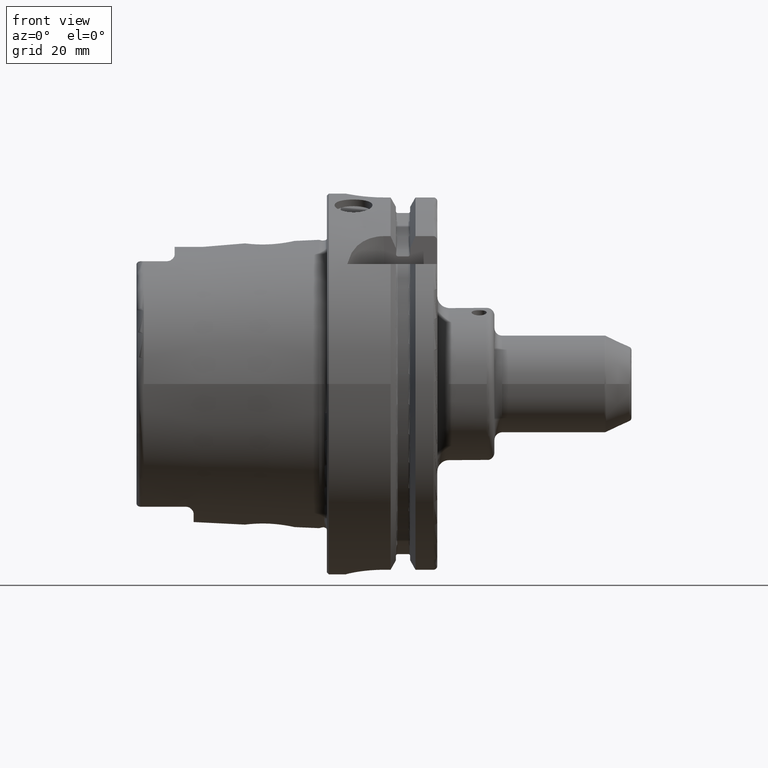
[diagram: clean part render]
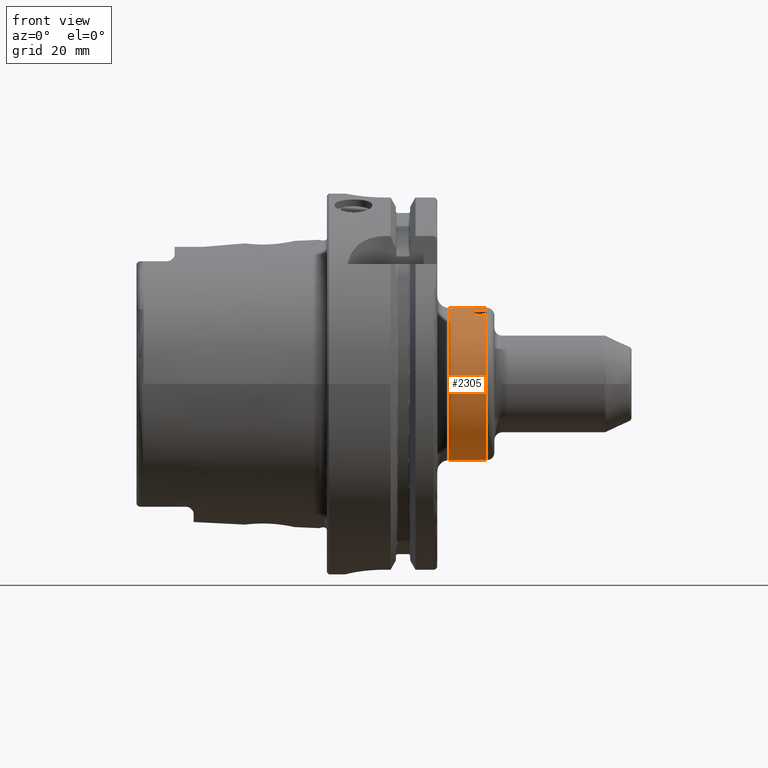
[diagram: same view with one face highlighted and labeled with its STEP entity id]
A machine part, front view. The second image highlights one B-rep face of the part: STEP entity #2305.
In plain terms, the highlighted cylindrical surface (bore or boss wall) has radius 20 mm, axis along (1, 0, 0).
Its self-contained STEP definition (entity closure, byte-faithful):
#70=B_SPLINE_CURVE_WITH_KNOTS('',3,(#3634,#3635,#3636,#3637,#3638,#3639,
#3640,#3641,#3642,#3643,#3644,#3645,#3646,#3647,#3648,#3649,#3650,#3651,
#3652,#3653,#3654,#3655,#3656,#3657,#3658,#3659,#3660,#3661,#3662,#3663,
#3664,#3665,#3666,#3667),.UNSPECIFIED.,.T.,.F.,(4,2,2,2,2,2,2,2,2,2,2,2,
2,2,2,2,4),(0.,0.0753915644060597,0.150783128812119,0.226174436603569,0.301565744395018,
0.376957052186468,0.452348359977918,0.527739924383977,0.603131488790037,
0.678523053196096,0.753914617602155,0.829305925393605,0.904697233185055,
0.980088540976505,1.05547984876795,1.13087141317401,1.20626297758007),
 .UNSPECIFIED.);
#140=CYLINDRICAL_SURFACE('',#2472,20.);
#188=LINE('',#3721,#307);
#307=VECTOR('',#2806,20.);
#477=FACE_OUTER_BOUND('',#614,.T.);
#614=EDGE_LOOP('',(#1578,#1579,#1580,#1581,#1582,#1583,#1584,#1585));
#763=CIRCLE('',#2473,20.);
#764=CIRCLE('',#2474,20.);
#765=CIRCLE('',#2475,20.);
#766=CIRCLE('',#2476,20.);
#767=CIRCLE('',#2477,20.);
#926=VERTEX_POINT('',#3633);
#930=VERTEX_POINT('',#3715);
#931=VERTEX_POINT('',#3717);
#932=VERTEX_POINT('',#3720);
#933=VERTEX_POINT('',#3722);
#1175=EDGE_CURVE('',#926,#926,#70,.T.);
#1183=EDGE_CURVE('',#926,#930,#763,.T.);
#1184=EDGE_CURVE('',#931,#926,#764,.T.);
#1185=EDGE_CURVE('',#930,#931,#765,.T.);
#1186=EDGE_CURVE('',#930,#932,#188,.T.);
#1187=EDGE_CURVE('',#933,#932,#766,.T.);
#1188=EDGE_CURVE('',#932,#933,#767,.T.);
#1578=ORIENTED_EDGE('',*,*,#1183,.F.);
#1579=ORIENTED_EDGE('',*,*,#1175,.T.);
#1580=ORIENTED_EDGE('',*,*,#1184,.F.);
#1581=ORIENTED_EDGE('',*,*,#1185,.F.);
#1582=ORIENTED_EDGE('',*,*,#1186,.T.);
#1583=ORIENTED_EDGE('',*,*,#1187,.F.);
#1584=ORIENTED_EDGE('',*,*,#1188,.F.);
#1585=ORIENTED_EDGE('',*,*,#1186,.F.);
#2305=ADVANCED_FACE('',(#477),#140,.T.);
#2472=AXIS2_PLACEMENT_3D('',#3714,#2798,#2799);
#2473=AXIS2_PLACEMENT_3D('',#3716,#2800,#2801);
#2474=AXIS2_PLACEMENT_3D('',#3718,#2802,#2803);
#2475=AXIS2_PLACEMENT_3D('',#3719,#2804,#2805);
#2476=AXIS2_PLACEMENT_3D('',#3723,#2807,#2808);
#2477=AXIS2_PLACEMENT_3D('',#3724,#2809,#2810);
#2798=DIRECTION('center_axis',(1.,0.,0.));
#2799=DIRECTION('ref_axis',(0.,1.,0.));
#2800=DIRECTION('center_axis',(1.,0.,0.));
#2801=DIRECTION('ref_axis',(0.,-1.,1.83697019872103E-16));
#2802=DIRECTION('center_axis',(1.,0.,0.));
#2803=DIRECTION('ref_axis',(0.,-1.,1.83697019872103E-16));
#2804=DIRECTION('center_axis',(1.,0.,0.));
#2805=DIRECTION('ref_axis',(0.,-1.,1.83697019872103E-16));
#2806=DIRECTION('',(-1.,0.,0.));
#2807=DIRECTION('center_axis',(-1.,0.,0.));
#2808=DIRECTION('ref_axis',(0.,-1.,-1.22464679914735E-16));
#2809=DIRECTION('center_axis',(-1.,0.,0.));
#2810=DIRECTION('ref_axis',(0.,-1.,-1.22464679914735E-16));
#3633=CARTESIAN_POINT('',(42.,-6.84040286651337,18.7938524157182));
#3634=CARTESIAN_POINT('Ctrl Pts',(40.,-4.9267296753571,19.3836873351268));
#3635=CARTESIAN_POINT('Ctrl Pts',(40.2513052146869,-4.9267296753571,19.3836873351268));
#3636=CARTESIAN_POINT('Ctrl Pts',(40.5192457164765,-4.97575253320722,19.3714324900191));
#3637=CARTESIAN_POINT('Ctrl Pts',(41.0119543009131,-5.17407812530953,19.3194054125572));
#3638=CARTESIAN_POINT('Ctrl Pts',(41.2367367618501,-5.32327778655426,19.2793768027751));
#3639=CARTESIAN_POINT('Ctrl Pts',(41.5916897588081,-5.66543039254757,19.1816202273922));
#3640=CARTESIAN_POINT('Ctrl Pts',(41.7455826417283,-5.88123512915884,19.1173181454941));
#3641=CARTESIAN_POINT('Ctrl Pts',(41.9497423975115,-6.35068612857698,18.9665380450829));
#3642=CARTESIAN_POINT('Ctrl Pts',(42.,-6.60425401450329,18.879803568706));
#3643=CARTESIAN_POINT('Ctrl Pts',(42.,-7.07655171852345,18.7079012627304));
#3644=CARTESIAN_POINT('Ctrl Pts',(41.9497423975116,-7.32654783523847,18.6113534310979));
#3645=CARTESIAN_POINT('Ctrl Pts',(41.7455826417283,-7.78308774499099,18.4251004033699));
#3646=CARTESIAN_POINT('Ctrl Pts',(41.5916897588081,-7.98973634579198,18.3356420450835));
#3647=CARTESIAN_POINT('Ctrl Pts',(41.2367367618501,-8.31467716373334,18.1905964706795));
#3648=CARTESIAN_POINT('Ctrl Pts',(41.0119543009131,-8.45470062954602,18.1253564711513));
#3649=CARTESIAN_POINT('Ctrl Pts',(40.5192457164765,-8.64006920806494,18.0377302914455));
#3650=CARTESIAN_POINT('Ctrl Pts',(40.2513052146869,-8.68550015850073,18.0156067618241));
#3651=CARTESIAN_POINT('Ctrl Pts',(39.7486947853131,-8.68550015850073,18.0156067618241));
#3652=CARTESIAN_POINT('Ctrl Pts',(39.4807542835235,-8.64006920806494,18.0377302914455));
#3653=CARTESIAN_POINT('Ctrl Pts',(38.9880456990869,-8.45470062954601,18.1253564711513));
#3654=CARTESIAN_POINT('Ctrl Pts',(38.7632632381499,-8.31467716373334,18.1905964706795));
#3655=CARTESIAN_POINT('Ctrl Pts',(38.4083102411919,-7.98973634579198,18.3356420450835));
#3656=CARTESIAN_POINT('Ctrl Pts',(38.2544173582717,-7.78308774499099,18.4251004033699));
#3657=CARTESIAN_POINT('Ctrl Pts',(38.0502576024884,-7.32654783523848,18.6113534310979));
#3658=CARTESIAN_POINT('Ctrl Pts',(38.,-7.07655171852345,18.7079012627304));
#3659=CARTESIAN_POINT('Ctrl Pts',(38.,-6.60425401450329,18.879803568706));
#3660=CARTESIAN_POINT('Ctrl Pts',(38.0502576024884,-6.35068612857698,18.9665380450829));
#3661=CARTESIAN_POINT('Ctrl Pts',(38.2544173582717,-5.88123512915884,19.1173181454941));
#3662=CARTESIAN_POINT('Ctrl Pts',(38.4083102411919,-5.66543039254757,19.1816202273922));
#3663=CARTESIAN_POINT('Ctrl Pts',(38.7632632381499,-5.32327778655426,19.2793768027751));
#3664=CARTESIAN_POINT('Ctrl Pts',(38.9880456990869,-5.17407812530953,19.3194054125572));
#3665=CARTESIAN_POINT('Ctrl Pts',(39.4807542835235,-4.97575253320722,19.3714324900191));
#3666=CARTESIAN_POINT('Ctrl Pts',(39.7486947853131,-4.9267296753571,19.3836873351268));
#3667=CARTESIAN_POINT('Ctrl Pts',(40.,-4.9267296753571,19.3836873351268));
#3714=CARTESIAN_POINT('Origin',(36.5,0.,0.));
#3715=CARTESIAN_POINT('',(42.,-20.,-2.44929359829471E-15));
#3716=CARTESIAN_POINT('Origin',(42.,0.,0.));
#3717=CARTESIAN_POINT('',(42.,-2.44929359829471E-15,20.));
#3718=CARTESIAN_POINT('Origin',(42.,0.,0.));
#3719=CARTESIAN_POINT('Origin',(42.,0.,0.));
#3720=CARTESIAN_POINT('',(32.,-20.,-2.44929359829471E-15));
#3721=CARTESIAN_POINT('',(36.5,-20.,-2.44929359829471E-15));
#3722=CARTESIAN_POINT('',(32.,-2.44929359829471E-15,-20.));
#3723=CARTESIAN_POINT('Origin',(32.,0.,0.));
#3724=CARTESIAN_POINT('Origin',(32.,0.,0.));